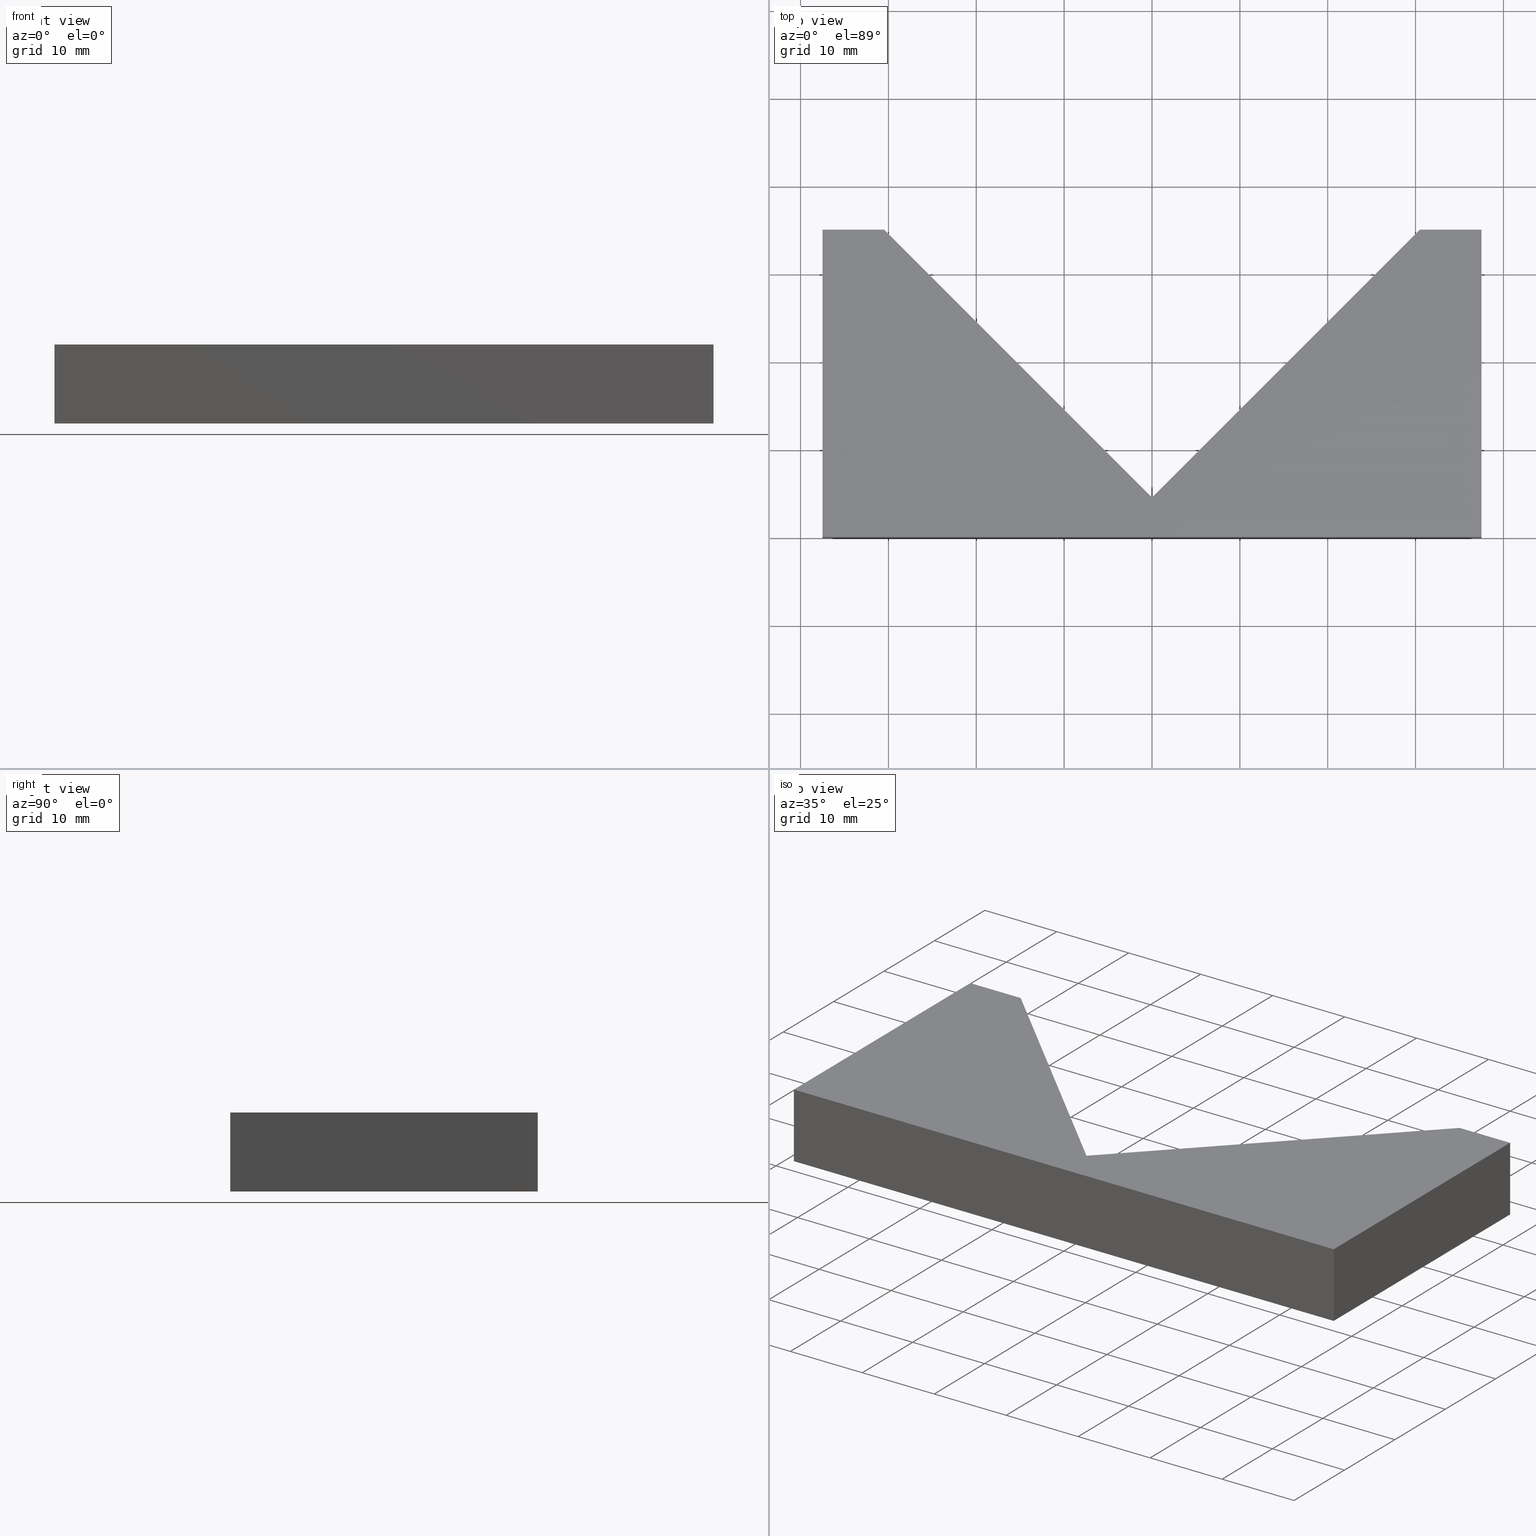
[diagram: canonical four-view strip — front | top / right | iso, engineering-drawing reading convention]
A machine part, canonical four-view strip (front | top / right | iso — engineering-drawing reading convention). The complete STEP part file that produces these views, byte-faithful:
ISO-10303-21;
HEADER;
/* Generated by software containing ST-Developer
 * from STEP Tools, Inc. (www.steptools.com) 
 */

FILE_DESCRIPTION(
/* description */ (''),
/* implementation_level */ '2;1');

FILE_NAME(
/* name */ 'E_3_01_10_18_00_WKZ-0225.stp',
/* time_stamp */ '2025-11-24T13:17:52+01:00',
/* author */ ('d.fischer'),
/* organization */ (''),
/* preprocessor_version */ 'ST-DEVELOPER v20',
/* originating_system */ 'Autodesk Inventor 2025',
/* authorisation */ '');

FILE_SCHEMA (('AUTOMOTIVE_DESIGN { 1 0 10303 214 3 1 1 }'));
ENDSEC;

DATA;
#10=MECHANICAL_DESIGN_GEOMETRIC_PRESENTATION_REPRESENTATION('',(#13),#291);
#11=SHAPE_REPRESENTATION_RELATIONSHIP('SRR','None',#298,#12);
#12=ADVANCED_BREP_SHAPE_REPRESENTATION('',(#14),#290);
#13=STYLED_ITEM('',(#307),#14);
#14=MANIFOLD_SOLID_BREP('Volumenk\X\F6rper1',#170);
#15=FACE_OUTER_BOUND('',#24,.T.);
#16=FACE_OUTER_BOUND('',#25,.T.);
#17=FACE_OUTER_BOUND('',#26,.T.);
#18=FACE_OUTER_BOUND('',#27,.T.);
#19=FACE_OUTER_BOUND('',#28,.T.);
#20=FACE_OUTER_BOUND('',#29,.T.);
#21=FACE_OUTER_BOUND('',#30,.T.);
#22=FACE_OUTER_BOUND('',#31,.T.);
#23=FACE_OUTER_BOUND('',#32,.T.);
#24=EDGE_LOOP('',(#110,#111,#112,#113,#114,#115,#116));
#25=EDGE_LOOP('',(#117,#118,#119,#120));
#26=EDGE_LOOP('',(#121,#122,#123,#124));
#27=EDGE_LOOP('',(#125,#126,#127,#128));
#28=EDGE_LOOP('',(#129,#130,#131,#132));
#29=EDGE_LOOP('',(#133,#134,#135,#136));
#30=EDGE_LOOP('',(#137,#138,#139,#140));
#31=EDGE_LOOP('',(#141,#142,#143,#144));
#32=EDGE_LOOP('',(#145,#146,#147,#148,#149,#150,#151));
#33=LINE('',#247,#54);
#34=LINE('',#249,#55);
#35=LINE('',#251,#56);
#36=LINE('',#253,#57);
#37=LINE('',#255,#58);
#38=LINE('',#257,#59);
#39=LINE('',#258,#60);
#40=LINE('',#262,#61);
#41=LINE('',#263,#62);
#42=LINE('',#264,#63);
#43=LINE('',#267,#64);
#44=LINE('',#268,#65);
#45=LINE('',#271,#66);
#46=LINE('',#272,#67);
#47=LINE('',#275,#68);
#48=LINE('',#276,#69);
#49=LINE('',#279,#70);
#50=LINE('',#280,#71);
#51=LINE('',#283,#72);
#52=LINE('',#284,#73);
#53=LINE('',#286,#74);
#54=VECTOR('',#206,10.);
#55=VECTOR('',#207,10.);
#56=VECTOR('',#208,10.);
#57=VECTOR('',#209,10.);
#58=VECTOR('',#210,10.);
#59=VECTOR('',#211,10.);
#60=VECTOR('',#212,10.);
#61=VECTOR('',#215,10.);
#62=VECTOR('',#216,10.);
#63=VECTOR('',#217,10.);
#64=VECTOR('',#220,10.);
#65=VECTOR('',#221,10.);
#66=VECTOR('',#224,10.);
#67=VECTOR('',#225,10.);
#68=VECTOR('',#228,10.);
#69=VECTOR('',#229,10.);
#70=VECTOR('',#232,10.);
#71=VECTOR('',#233,10.);
#72=VECTOR('',#236,10.);
#73=VECTOR('',#237,10.);
#74=VECTOR('',#240,10.);
#75=VERTEX_POINT('',#245);
#76=VERTEX_POINT('',#246);
#77=VERTEX_POINT('',#248);
#78=VERTEX_POINT('',#250);
#79=VERTEX_POINT('',#252);
#80=VERTEX_POINT('',#254);
#81=VERTEX_POINT('',#256);
#82=VERTEX_POINT('',#260);
#83=VERTEX_POINT('',#261);
#84=VERTEX_POINT('',#266);
#85=VERTEX_POINT('',#270);
#86=VERTEX_POINT('',#274);
#87=VERTEX_POINT('',#278);
#88=VERTEX_POINT('',#282);
#89=EDGE_CURVE('',#75,#76,#33,.T.);
#90=EDGE_CURVE('',#77,#75,#34,.T.);
#91=EDGE_CURVE('',#78,#77,#35,.T.);
#92=EDGE_CURVE('',#79,#78,#36,.T.);
#93=EDGE_CURVE('',#80,#79,#37,.T.);
#94=EDGE_CURVE('',#81,#80,#38,.T.);
#95=EDGE_CURVE('',#76,#81,#39,.T.);
#96=EDGE_CURVE('',#82,#83,#40,.T.);
#97=EDGE_CURVE('',#83,#78,#41,.T.);
#98=EDGE_CURVE('',#82,#77,#42,.T.);
#99=EDGE_CURVE('',#83,#84,#43,.T.);
#100=EDGE_CURVE('',#84,#79,#44,.T.);
#101=EDGE_CURVE('',#84,#85,#45,.T.);
#102=EDGE_CURVE('',#85,#80,#46,.T.);
#103=EDGE_CURVE('',#85,#86,#47,.T.);
#104=EDGE_CURVE('',#86,#81,#48,.T.);
#105=EDGE_CURVE('',#86,#87,#49,.T.);
#106=EDGE_CURVE('',#87,#76,#50,.T.);
#107=EDGE_CURVE('',#87,#88,#51,.T.);
#108=EDGE_CURVE('',#75,#88,#52,.T.);
#109=EDGE_CURVE('',#88,#82,#53,.T.);
#110=ORIENTED_EDGE('',*,*,#89,.F.);
#111=ORIENTED_EDGE('',*,*,#90,.F.);
#112=ORIENTED_EDGE('',*,*,#91,.F.);
#113=ORIENTED_EDGE('',*,*,#92,.F.);
#114=ORIENTED_EDGE('',*,*,#93,.F.);
#115=ORIENTED_EDGE('',*,*,#94,.F.);
#116=ORIENTED_EDGE('',*,*,#95,.F.);
#117=ORIENTED_EDGE('',*,*,#96,.T.);
#118=ORIENTED_EDGE('',*,*,#97,.T.);
#119=ORIENTED_EDGE('',*,*,#91,.T.);
#120=ORIENTED_EDGE('',*,*,#98,.F.);
#121=ORIENTED_EDGE('',*,*,#99,.T.);
#122=ORIENTED_EDGE('',*,*,#100,.T.);
#123=ORIENTED_EDGE('',*,*,#92,.T.);
#124=ORIENTED_EDGE('',*,*,#97,.F.);
#125=ORIENTED_EDGE('',*,*,#101,.T.);
#126=ORIENTED_EDGE('',*,*,#102,.T.);
#127=ORIENTED_EDGE('',*,*,#93,.T.);
#128=ORIENTED_EDGE('',*,*,#100,.F.);
#129=ORIENTED_EDGE('',*,*,#103,.T.);
#130=ORIENTED_EDGE('',*,*,#104,.T.);
#131=ORIENTED_EDGE('',*,*,#94,.T.);
#132=ORIENTED_EDGE('',*,*,#102,.F.);
#133=ORIENTED_EDGE('',*,*,#105,.T.);
#134=ORIENTED_EDGE('',*,*,#106,.T.);
#135=ORIENTED_EDGE('',*,*,#95,.T.);
#136=ORIENTED_EDGE('',*,*,#104,.F.);
#137=ORIENTED_EDGE('',*,*,#107,.T.);
#138=ORIENTED_EDGE('',*,*,#108,.F.);
#139=ORIENTED_EDGE('',*,*,#89,.T.);
#140=ORIENTED_EDGE('',*,*,#106,.F.);
#141=ORIENTED_EDGE('',*,*,#109,.T.);
#142=ORIENTED_EDGE('',*,*,#98,.T.);
#143=ORIENTED_EDGE('',*,*,#90,.T.);
#144=ORIENTED_EDGE('',*,*,#108,.T.);
#145=ORIENTED_EDGE('',*,*,#96,.F.);
#146=ORIENTED_EDGE('',*,*,#109,.F.);
#147=ORIENTED_EDGE('',*,*,#107,.F.);
#148=ORIENTED_EDGE('',*,*,#105,.F.);
#149=ORIENTED_EDGE('',*,*,#103,.F.);
#150=ORIENTED_EDGE('',*,*,#101,.F.);
#151=ORIENTED_EDGE('',*,*,#99,.F.);
#152=PLANE('',#193);
#153=PLANE('',#194);
#154=PLANE('',#195);
#155=PLANE('',#196);
#156=PLANE('',#197);
#157=PLANE('',#198);
#158=PLANE('',#199);
#159=PLANE('',#200);
#160=PLANE('',#201);
#161=ADVANCED_FACE('',(#15),#152,.F.);
#162=ADVANCED_FACE('',(#16),#153,.T.);
#163=ADVANCED_FACE('',(#17),#154,.T.);
#164=ADVANCED_FACE('',(#18),#155,.T.);
#165=ADVANCED_FACE('',(#19),#156,.T.);
#166=ADVANCED_FACE('',(#20),#157,.T.);
#167=ADVANCED_FACE('',(#21),#158,.T.);
#168=ADVANCED_FACE('',(#22),#159,.T.);
#169=ADVANCED_FACE('',(#23),#160,.T.);
#170=CLOSED_SHELL('',(#161,#162,#163,#164,#165,#166,#167,#168,#169));
#171=DERIVED_UNIT_ELEMENT(#174,1.);
#172=DERIVED_UNIT_ELEMENT(#293,-3.);
#173=DIMENSIONAL_EXPONENTS(0.,1.,0.,0.,0.,0.,0.);
#174=(
CONVERSION_BASED_UNIT('gram',#176)
MASS_UNIT()
NAMED_UNIT(#173)
);
#175=(
MASS_UNIT()
NAMED_UNIT(*)
SI_UNIT(.KILO.,.GRAM.)
);
#176=MASS_MEASURE_WITH_UNIT(MASS_MEASURE(0.001),#175);
#177=DERIVED_UNIT((#171,#172));
#178=MEASURE_REPRESENTATION_ITEM('density measure',
POSITIVE_RATIO_MEASURE(8.03),#177);
#179=PROPERTY_DEFINITION_REPRESENTATION(#184,#181);
#180=PROPERTY_DEFINITION_REPRESENTATION(#185,#182);
#181=REPRESENTATION('material name',(#183),#290);
#182=REPRESENTATION('density',(#178),#290);
#183=DESCRIPTIVE_REPRESENTATION_ITEM('1.4301','1.4301');
#184=PROPERTY_DEFINITION('material property','material name',#300);
#185=PROPERTY_DEFINITION('material property','density of part',#300);
#186=DATE_TIME_ROLE('creation_date');
#187=APPLIED_DATE_AND_TIME_ASSIGNMENT(#188,#186,(#300));
#188=DATE_AND_TIME(#189,#190);
#189=CALENDAR_DATE(2011,18,10);
#190=LOCAL_TIME(0,0,0.,#191);
#191=COORDINATED_UNIVERSAL_TIME_OFFSET(0,0,.BEHIND.);
#192=AXIS2_PLACEMENT_3D('',#243,#202,#203);
#193=AXIS2_PLACEMENT_3D('',#244,#204,#205);
#194=AXIS2_PLACEMENT_3D('',#259,#213,#214);
#195=AXIS2_PLACEMENT_3D('',#265,#218,#219);
#196=AXIS2_PLACEMENT_3D('',#269,#222,#223);
#197=AXIS2_PLACEMENT_3D('',#273,#226,#227);
#198=AXIS2_PLACEMENT_3D('',#277,#230,#231);
#199=AXIS2_PLACEMENT_3D('',#281,#234,#235);
#200=AXIS2_PLACEMENT_3D('',#285,#238,#239);
#201=AXIS2_PLACEMENT_3D('',#287,#241,#242);
#202=DIRECTION('axis',(0.,0.,1.));
#203=DIRECTION('refdir',(1.,0.,0.));
#204=DIRECTION('center_axis',(0.,0.,1.));
#205=DIRECTION('ref_axis',(1.,0.,0.));
#206=DIRECTION('',(0.,1.,0.));
#207=DIRECTION('',(1.,0.,0.));
#208=DIRECTION('',(0.,-1.,0.));
#209=DIRECTION('',(-1.,-6.34413156928661E-16,0.));
#210=DIRECTION('',(-0.707106781186547,0.707106781186548,0.));
#211=DIRECTION('',(-0.707106781186547,-0.707106781186548,0.));
#212=DIRECTION('',(-1.,6.34413156928661E-16,0.));
#213=DIRECTION('center_axis',(-1.,0.,0.));
#214=DIRECTION('ref_axis',(0.,0.,1.));
#215=DIRECTION('',(0.,1.,0.));
#216=DIRECTION('',(0.,0.,-1.));
#217=DIRECTION('',(0.,0.,-1.));
#218=DIRECTION('center_axis',(-6.34413156928661E-16,1.,0.));
#219=DIRECTION('ref_axis',(0.,0.,1.));
#220=DIRECTION('',(1.,6.34413156928661E-16,0.));
#221=DIRECTION('',(0.,0.,-1.));
#222=DIRECTION('center_axis',(0.707106781186548,0.707106781186547,0.));
#223=DIRECTION('ref_axis',(0.,0.,-1.));
#224=DIRECTION('',(0.707106781186547,-0.707106781186548,0.));
#225=DIRECTION('',(0.,0.,-1.));
#226=DIRECTION('center_axis',(-0.707106781186548,0.707106781186547,0.));
#227=DIRECTION('ref_axis',(0.,0.,1.));
#228=DIRECTION('',(0.707106781186547,0.707106781186548,0.));
#229=DIRECTION('',(0.,0.,-1.));
#230=DIRECTION('center_axis',(6.34413156928661E-16,1.,0.));
#231=DIRECTION('ref_axis',(0.,0.,1.));
#232=DIRECTION('',(1.,-6.34413156928661E-16,0.));
#233=DIRECTION('',(0.,0.,-1.));
#234=DIRECTION('center_axis',(1.,0.,0.));
#235=DIRECTION('ref_axis',(0.,0.,-1.));
#236=DIRECTION('',(0.,-1.,0.));
#237=DIRECTION('',(0.,0.,1.));
#238=DIRECTION('center_axis',(0.,-1.,0.));
#239=DIRECTION('ref_axis',(0.,0.,-1.));
#240=DIRECTION('',(-1.,0.,0.));
#241=DIRECTION('center_axis',(0.,0.,1.));
#242=DIRECTION('ref_axis',(1.,0.,0.));
#243=CARTESIAN_POINT('',(0.,0.,0.));
#244=CARTESIAN_POINT('Origin',(0.,13.9389865276141,-4.5));
#245=CARTESIAN_POINT('',(37.5,0.,-4.5));
#246=CARTESIAN_POINT('',(37.5,35.,-4.5));
#247=CARTESIAN_POINT('',(37.5,35.,-4.5));
#248=CARTESIAN_POINT('',(-37.5,0.,-4.5));
#249=CARTESIAN_POINT('',(37.5,0.,-4.5));
#250=CARTESIAN_POINT('',(-37.5,35.,-4.5));
#251=CARTESIAN_POINT('',(-37.5,0.,-4.5));
#252=CARTESIAN_POINT('',(-30.5,35.,-4.5));
#253=CARTESIAN_POINT('',(-37.5,35.,-4.5));
#254=CARTESIAN_POINT('',(0.,4.5,-4.5));
#255=CARTESIAN_POINT('',(-30.5,35.,-4.5));
#256=CARTESIAN_POINT('',(30.5,35.,-4.5));
#257=CARTESIAN_POINT('',(0.,4.5,-4.5));
#258=CARTESIAN_POINT('',(30.5,35.,-4.5));
#259=CARTESIAN_POINT('Origin',(-37.5,0.,0.));
#260=CARTESIAN_POINT('',(-37.5,0.,4.5));
#261=CARTESIAN_POINT('',(-37.5,35.,4.5));
#262=CARTESIAN_POINT('',(-37.5,0.,4.5));
#263=CARTESIAN_POINT('',(-37.5,35.,0.));
#264=CARTESIAN_POINT('',(-37.5,0.,0.));
#265=CARTESIAN_POINT('Origin',(-37.5,35.,0.));
#266=CARTESIAN_POINT('',(-30.5,35.,4.5));
#267=CARTESIAN_POINT('',(-37.5,35.,4.5));
#268=CARTESIAN_POINT('',(-30.5,35.,0.));
#269=CARTESIAN_POINT('Origin',(-30.5,35.,0.));
#270=CARTESIAN_POINT('',(0.,4.5,4.5));
#271=CARTESIAN_POINT('',(-30.5,35.,4.5));
#272=CARTESIAN_POINT('',(0.,4.5,0.));
#273=CARTESIAN_POINT('Origin',(0.,4.5,0.));
#274=CARTESIAN_POINT('',(30.5,35.,4.5));
#275=CARTESIAN_POINT('',(0.,4.5,4.5));
#276=CARTESIAN_POINT('',(30.5,35.,0.));
#277=CARTESIAN_POINT('Origin',(30.5,35.,0.));
#278=CARTESIAN_POINT('',(37.5,35.,4.5));
#279=CARTESIAN_POINT('',(30.5,35.,4.5));
#280=CARTESIAN_POINT('',(37.5,35.,0.));
#281=CARTESIAN_POINT('Origin',(37.5,35.,0.));
#282=CARTESIAN_POINT('',(37.5,0.,4.5));
#283=CARTESIAN_POINT('',(37.5,35.,4.5));
#284=CARTESIAN_POINT('',(37.5,0.,0.));
#285=CARTESIAN_POINT('Origin',(37.5,0.,0.));
#286=CARTESIAN_POINT('',(37.5,0.,4.5));
#287=CARTESIAN_POINT('Origin',(0.,13.9389865276141,4.5));
#288=UNCERTAINTY_MEASURE_WITH_UNIT(LENGTH_MEASURE(0.01),#292,
'DISTANCE_ACCURACY_VALUE',
'Maximum model space distance between geometric entities at asserted c
onnectivities');
#289=UNCERTAINTY_MEASURE_WITH_UNIT(LENGTH_MEASURE(0.01),#292,
'DISTANCE_ACCURACY_VALUE',
'Maximum model space distance between geometric entities at asserted c
onnectivities');
#290=(
GEOMETRIC_REPRESENTATION_CONTEXT(3)
GLOBAL_UNCERTAINTY_ASSIGNED_CONTEXT((#288))
GLOBAL_UNIT_ASSIGNED_CONTEXT((#292,#294,#295))
REPRESENTATION_CONTEXT('','3D')
);
#291=(
GEOMETRIC_REPRESENTATION_CONTEXT(3)
GLOBAL_UNCERTAINTY_ASSIGNED_CONTEXT((#289))
GLOBAL_UNIT_ASSIGNED_CONTEXT((#292,#294,#295))
REPRESENTATION_CONTEXT('','3D')
);
#292=(
LENGTH_UNIT()
NAMED_UNIT(*)
SI_UNIT(.MILLI.,.METRE.)
);
#293=(
LENGTH_UNIT()
NAMED_UNIT(*)
SI_UNIT(.CENTI.,.METRE.)
);
#294=(
NAMED_UNIT(*)
PLANE_ANGLE_UNIT()
SI_UNIT($,.RADIAN.)
);
#295=(
NAMED_UNIT(*)
SI_UNIT($,.STERADIAN.)
SOLID_ANGLE_UNIT()
);
#296=SHAPE_DEFINITION_REPRESENTATION(#297,#298);
#297=PRODUCT_DEFINITION_SHAPE('',$,#300);
#298=SHAPE_REPRESENTATION('',(#192),#290);
#299=PRODUCT_DEFINITION_CONTEXT('part definition',#304,'design');
#300=PRODUCT_DEFINITION('WKZ-0225','E_3_01_10_18_00_WKZ-0225',#301,#299);
#301=PRODUCT_DEFINITION_FORMATION('',$,#306);
#302=PRODUCT_RELATED_PRODUCT_CATEGORY('E_3_01_10_18_00_WKZ-0225',
'E_3_01_10_18_00_WKZ-0225',(#306));
#303=APPLICATION_PROTOCOL_DEFINITION('international standard',
'automotive_design',2009,#304);
#304=APPLICATION_CONTEXT(
'Core Data for Automotive Mechanical Design Process');
#305=PRODUCT_CONTEXT('part definition',#304,'mechanical');
#306=PRODUCT('WKZ-0225','E_3_01_10_18_00_WKZ-0225',$,(#305));
#307=PRESENTATION_STYLE_ASSIGNMENT((#308));
#308=SURFACE_STYLE_USAGE(.BOTH.,#311);
#309=SURFACE_STYLE_RENDERING_WITH_PROPERTIES($,#315,(#310));
#310=SURFACE_STYLE_TRANSPARENT(0.);
#311=SURFACE_SIDE_STYLE('',(#312,#309));
#312=SURFACE_STYLE_FILL_AREA(#313);
#313=FILL_AREA_STYLE('',(#314));
#314=FILL_AREA_STYLE_COLOUR('',#315);
#315=COLOUR_RGB('',0.92156862745098,0.92156862745098,0.92156862745098);
ENDSEC;
END-ISO-10303-21;
